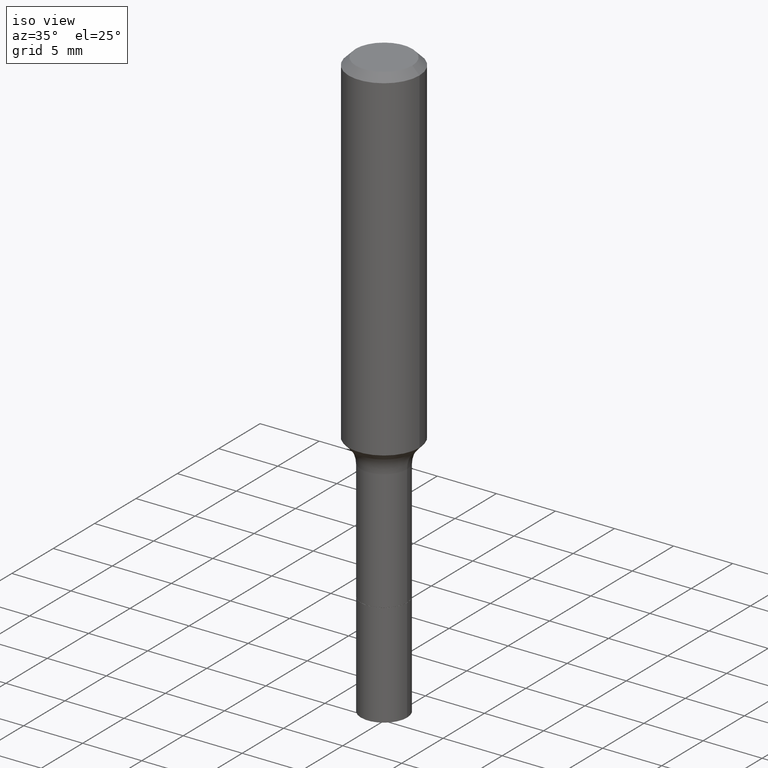
[diagram: clean part render]
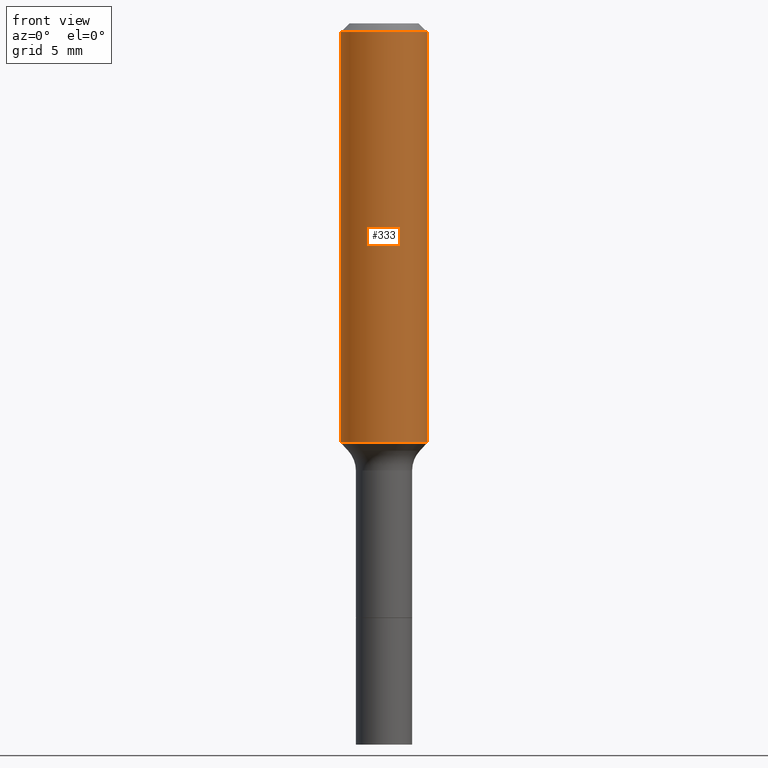
[diagram: tour spotlight — one face highlighted and labeled with its STEP entity id]
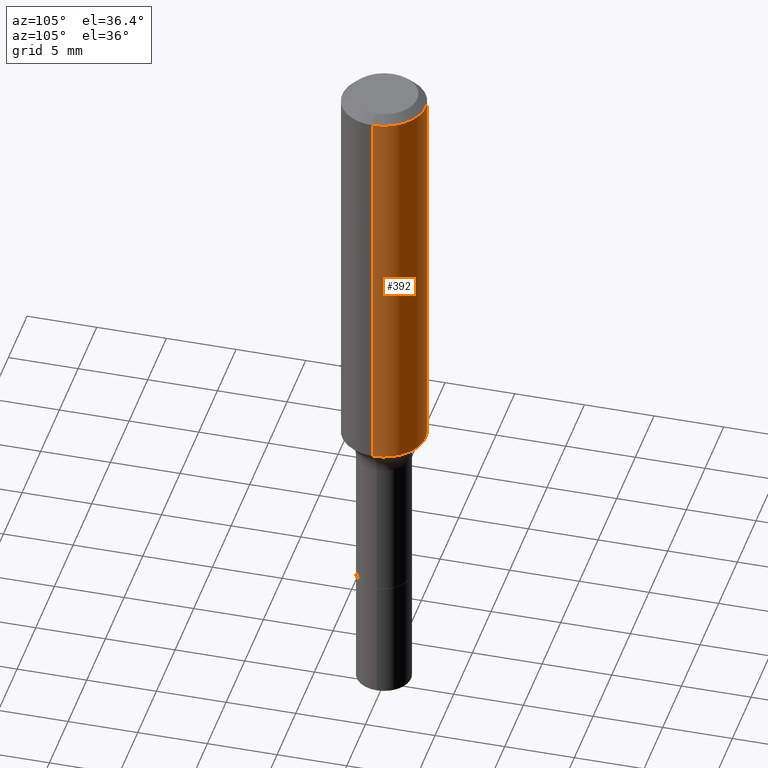
[diagram: tour spotlight — one face highlighted and labeled with its STEP entity id]
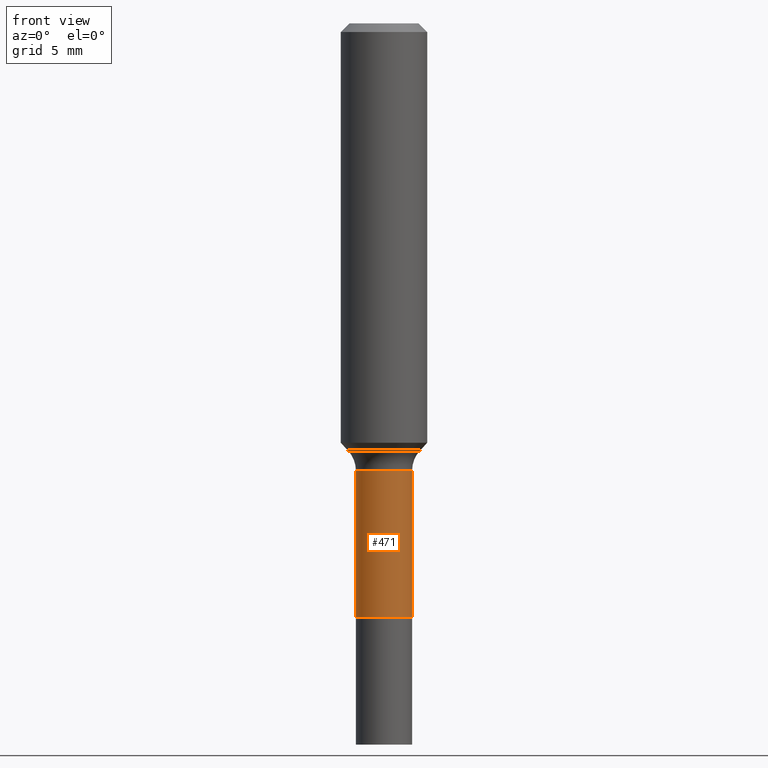
[diagram: tour spotlight — one face highlighted and labeled with its STEP entity id]
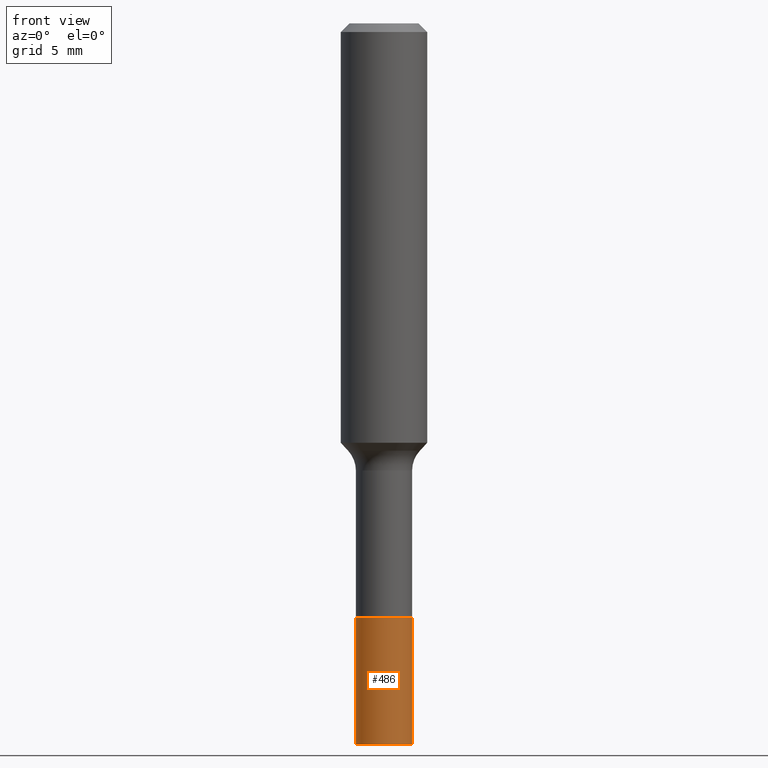
[diagram: tour spotlight — one face highlighted and labeled with its STEP entity id]
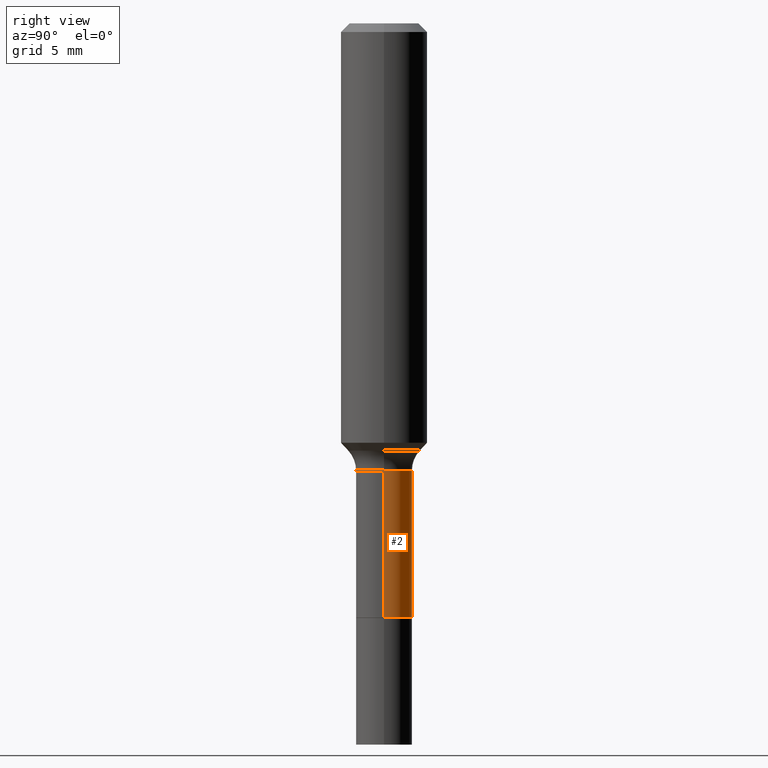
[diagram: tour spotlight — one face highlighted and labeled with its STEP entity id]
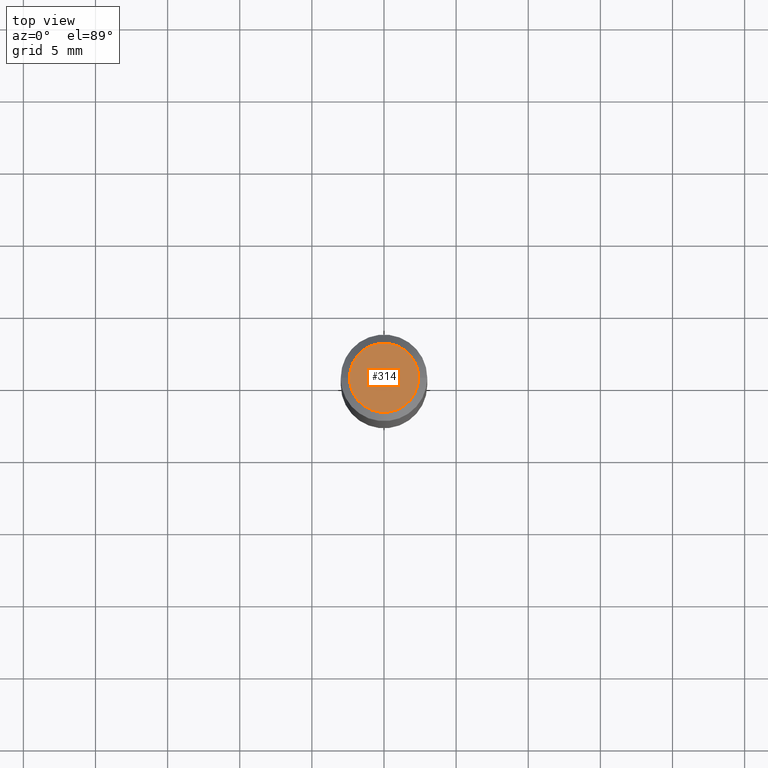
[diagram: tour spotlight — one face highlighted and labeled with its STEP entity id]
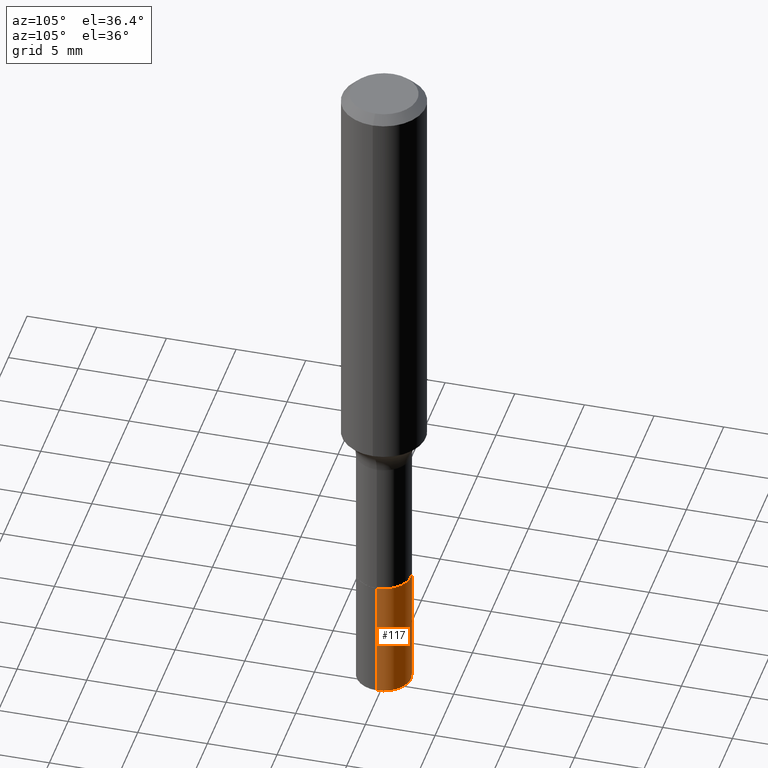
[diagram: tour spotlight — one face highlighted and labeled with its STEP entity id]
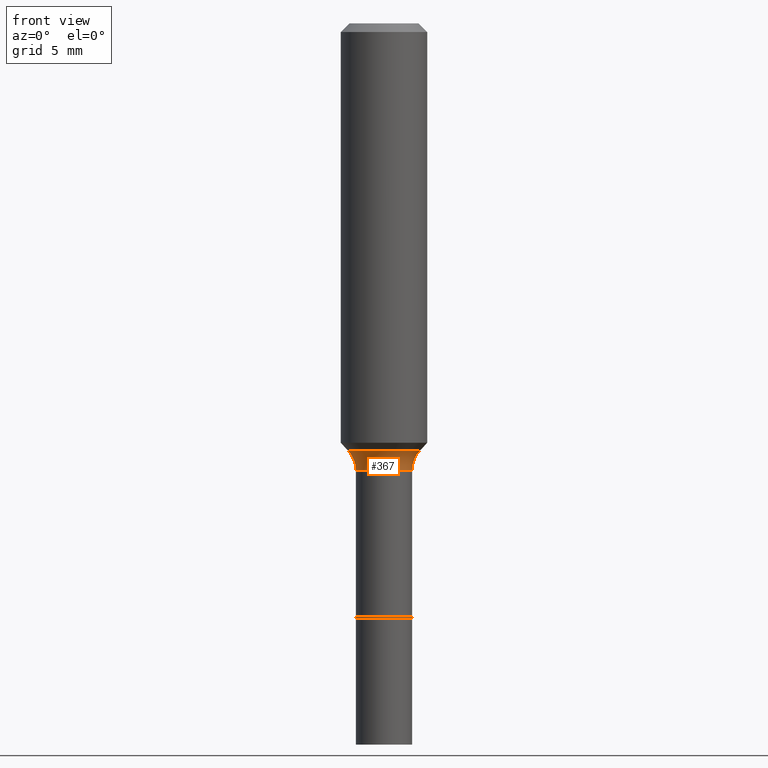
[diagram: tour spotlight — one face highlighted and labeled with its STEP entity id]
A machine part: a face-by-face anatomy tour. The part has 18 B-rep faces; the first image is the clean iso view, then the 8 largest visible faces are spotlighted one at a time (largest first), each with its STEP entity span.

Face 1 — front view, entity #333. In plain terms, the highlighted cylindrical surface (partial cylindrical patch) has radius 2.9997 mm, axis along (-0, 0, 1).
Definition (entity closure, byte-faithful):
#3 = AXIS2_PLACEMENT_3D ( 'NONE', #210, #247, #11 ) ;
#11 = DIRECTION ( 'NONE',  ( 1.000000000000000000, -6.982962677686265133E-15, 0.000000000000000000 ) ) ;
#16 = ORIENTED_EDGE ( 'NONE', *, *, #277, .T. ) ;
#28 = ORIENTED_EDGE ( 'NONE', *, *, #64, .T. ) ;
#30 = DIRECTION ( 'NONE',  ( -2.445468806185136877E-29, 3.491481338843145188E-15, 1.000000000000000000 ) ) ;
#44 = CIRCLE ( 'NONE', #403, 0.1180999999999999966 ) ;
#53 = ORIENTED_EDGE ( 'NONE', *, *, #410, .F. ) ;
#64 = EDGE_CURVE ( 'NONE', #180, #130, #302, .T. ) ;
#101 = DIRECTION ( 'NONE',  ( 1.000000000000000000, -6.982962677686266711E-15, 4.876176775795936353E-29 ) ) ;
#130 = VERTEX_POINT ( 'NONE', #435 ) ;
#145 = CARTESIAN_POINT ( 'NONE',  ( 0.000000000000000000, 0.000000000000000000, 0.000000000000000000 ) ) ;
#180 = VERTEX_POINT ( 'NONE', #488 ) ;
#184 = ORIENTED_EDGE ( 'NONE', *, *, #469, .F. ) ;
#196 = AXIS2_PLACEMENT_3D ( 'NONE', #145, #422, #101 ) ;
#210 = CARTESIAN_POINT ( 'NONE',  ( 2.799192946632236054E-29, -3.996505664790683572E-15, -1.144644715791283796 ) ) ;
#225 = CARTESIAN_POINT ( 'NONE',  ( 0.1181000000000000660, -8.246878922347485584E-16, 5.758764772215003944E-30 ) ) ;
#247 = DIRECTION ( 'NONE',  ( -2.445468806185136597E-29, 3.491481338843145583E-15, 1.000000000000000000 ) ) ;
#248 = VECTOR ( 'NONE', #30, 39.37007874015748143 ) ;
#253 = VERTEX_POINT ( 'NONE', #396 ) ;
#259 = FACE_OUTER_BOUND ( 'NONE', #460, .T. ) ;
#264 = DIRECTION ( 'NONE',  ( -2.445468806185136877E-29, 3.491481338843145188E-15, 1.000000000000000000 ) ) ;
#268 = DIRECTION ( 'NONE',  ( 1.000000000000000000, -6.982962677686266711E-15, 0.000000000000000000 ) ) ;
#277 = EDGE_CURVE ( 'NONE', #253, #180, #386, .T. ) ;
#294 = CYLINDRICAL_SURFACE ( 'NONE', #196, 0.1181000000000000660 ) ;
#302 = LINE ( 'NONE', #225, #248 ) ;
#333 = ADVANCED_FACE ( 'NONE', ( #259 ), #294, .T. ) ;
#341 = VECTOR ( 'NONE', #264, 39.37007874015748143 ) ;
#345 = CARTESIAN_POINT ( 'NONE',  ( 5.776197320209328408E-31, -8.246878922347560526E-17, -0.02362000000000014435 ) ) ;
#374 = CARTESIAN_POINT ( 'NONE',  ( -0.1181000000000000660, 8.391509709326787887E-16, -5.809262341591047287E-30 ) ) ;
#386 = CIRCLE ( 'NONE', #3, 0.1181000000000001354 ) ;
#396 = CARTESIAN_POINT ( 'NONE',  ( -0.1181000000000001354, -3.157354693858003797E-15, -1.144644715791283796 ) ) ;
#403 = AXIS2_PLACEMENT_3D ( 'NONE', #345, #511, #268 ) ;
#410 = EDGE_CURVE ( 'NONE', #253, #470, #430, .T. ) ;
#422 = DIRECTION ( 'NONE',  ( -2.445468806185136597E-29, 3.491481338843145583E-15, 1.000000000000000000 ) ) ;
#430 = LINE ( 'NONE', #374, #341 ) ;
#435 = CARTESIAN_POINT ( 'NONE',  ( 0.1180999999999999966, -9.071566814582237199E-16, -0.02362000000000014435 ) ) ;
#460 = EDGE_LOOP ( 'NONE', ( #53, #16, #28, #184 ) ) ;
#469 = EDGE_CURVE ( 'NONE', #470, #130, #44, .T. ) ;
#470 = VERTEX_POINT ( 'NONE', #472 ) ;
#472 = CARTESIAN_POINT ( 'NONE',  ( -0.1180999999999999966, -1.200336256074400134E-15, -0.02362000000000014435 ) ) ;
#488 = CARTESIAN_POINT ( 'NONE',  ( 0.1181000000000001354, -4.821193557025433412E-15, -1.144644715791283796 ) ) ;
#511 = DIRECTION ( 'NONE',  ( -2.445468806185136597E-29, 3.491481338843145583E-15, 1.000000000000000000 ) ) ;

Face 2 — auxiliary view, entity #392. In plain terms, the highlighted cylindrical surface (partial cylindrical patch) has radius 2.9997 mm, axis along (-0, 0, 1).
Definition (entity closure, byte-faithful):
#4 = EDGE_CURVE ( 'NONE', #180, #253, #83, .T. ) ;
#30 = DIRECTION ( 'NONE',  ( -2.445468806185136877E-29, 3.491481338843145188E-15, 1.000000000000000000 ) ) ;
#36 = DIRECTION ( 'NONE',  ( -2.445468806185136597E-29, 3.491481338843145583E-15, 1.000000000000000000 ) ) ;
#62 = ORIENTED_EDGE ( 'NONE', *, *, #64, .F. ) ;
#64 = EDGE_CURVE ( 'NONE', #180, #130, #302, .T. ) ;
#83 = CIRCLE ( 'NONE', #114, 0.1181000000000001354 ) ;
#110 = AXIS2_PLACEMENT_3D ( 'NONE', #388, #36, #457 ) ;
#114 = AXIS2_PLACEMENT_3D ( 'NONE', #266, #270, #193 ) ;
#130 = VERTEX_POINT ( 'NONE', #435 ) ;
#136 = DIRECTION ( 'NONE',  ( -2.445468806185136597E-29, 3.491481338843145583E-15, 1.000000000000000000 ) ) ;
#148 = DIRECTION ( 'NONE',  ( 1.000000000000000000, -6.982962677686266711E-15, 4.876176775795936353E-29 ) ) ;
#180 = VERTEX_POINT ( 'NONE', #488 ) ;
#193 = DIRECTION ( 'NONE',  ( 1.000000000000000000, -6.982962677686265133E-15, 0.000000000000000000 ) ) ;
#217 = ORIENTED_EDGE ( 'NONE', *, *, #4, .T. ) ;
#218 = CYLINDRICAL_SURFACE ( 'NONE', #417, 0.1181000000000000660 ) ;
#225 = CARTESIAN_POINT ( 'NONE',  ( 0.1181000000000000660, -8.246878922347485584E-16, 5.758764772215003944E-30 ) ) ;
#227 = ORIENTED_EDGE ( 'NONE', *, *, #410, .T. ) ;
#245 = ORIENTED_EDGE ( 'NONE', *, *, #474, .F. ) ;
#248 = VECTOR ( 'NONE', #30, 39.37007874015748143 ) ;
#253 = VERTEX_POINT ( 'NONE', #396 ) ;
#264 = DIRECTION ( 'NONE',  ( -2.445468806185136877E-29, 3.491481338843145188E-15, 1.000000000000000000 ) ) ;
#266 = CARTESIAN_POINT ( 'NONE',  ( 2.799192946632236054E-29, -3.996505664790683572E-15, -1.144644715791283796 ) ) ;
#270 = DIRECTION ( 'NONE',  ( -2.445468806185136597E-29, 3.491481338843145583E-15, 1.000000000000000000 ) ) ;
#302 = LINE ( 'NONE', #225, #248 ) ;
#328 = CIRCLE ( 'NONE', #110, 0.1180999999999999966 ) ;
#341 = VECTOR ( 'NONE', #264, 39.37007874015748143 ) ;
#374 = CARTESIAN_POINT ( 'NONE',  ( -0.1181000000000000660, 8.391509709326787887E-16, -5.809262341591047287E-30 ) ) ;
#381 = EDGE_LOOP ( 'NONE', ( #217, #227, #245, #62 ) ) ;
#388 = CARTESIAN_POINT ( 'NONE',  ( 5.776197320209328408E-31, -8.246878922347560526E-17, -0.02362000000000014435 ) ) ;
#392 = ADVANCED_FACE ( 'NONE', ( #432 ), #218, .T. ) ;
#396 = CARTESIAN_POINT ( 'NONE',  ( -0.1181000000000001354, -3.157354693858003797E-15, -1.144644715791283796 ) ) ;
#410 = EDGE_CURVE ( 'NONE', #253, #470, #430, .T. ) ;
#417 = AXIS2_PLACEMENT_3D ( 'NONE', #509, #136, #148 ) ;
#430 = LINE ( 'NONE', #374, #341 ) ;
#432 = FACE_OUTER_BOUND ( 'NONE', #381, .T. ) ;
#435 = CARTESIAN_POINT ( 'NONE',  ( 0.1180999999999999966, -9.071566814582237199E-16, -0.02362000000000014435 ) ) ;
#457 = DIRECTION ( 'NONE',  ( 1.000000000000000000, -6.982962677686266711E-15, 0.000000000000000000 ) ) ;
#470 = VERTEX_POINT ( 'NONE', #472 ) ;
#472 = CARTESIAN_POINT ( 'NONE',  ( -0.1180999999999999966, -1.200336256074400134E-15, -0.02362000000000014435 ) ) ;
#474 = EDGE_CURVE ( 'NONE', #130, #470, #328, .T. ) ;
#488 = CARTESIAN_POINT ( 'NONE',  ( 0.1181000000000001354, -4.821193557025433412E-15, -1.144644715791283796 ) ) ;
#509 = CARTESIAN_POINT ( 'NONE',  ( 0.000000000000000000, 0.000000000000000000, 0.000000000000000000 ) ) ;

Face 3 — front view, entity #471. In plain terms, the highlighted cylindrical surface (edge-blend (fillet) strip) has radius 1.9494 mm, axis along (-0, 0, 1).
Definition (entity closure, byte-faithful):
#13 = ORIENTED_EDGE ( 'NONE', *, *, #80, .T. ) ;
#15 = CIRCLE ( 'NONE', #139, 0.07674999999999995715 ) ;
#24 = DIRECTION ( 'NONE',  ( -2.445468806185136597E-29, 3.491481338843145583E-15, 1.000000000000000000 ) ) ;
#32 = DIRECTION ( 'NONE',  ( -2.445468806185136597E-29, 3.491481338843145583E-15, 1.000000000000000000 ) ) ;
#55 = CIRCLE ( 'NONE', #273, 0.07674999999999999878 ) ;
#68 = CARTESIAN_POINT ( 'NONE',  ( 2.984694677948959472E-29, -4.261352974058059028E-15, -1.220499999999999918 ) ) ;
#77 = EDGE_CURVE ( 'NONE', #250, #340, #183, .T. ) ;
#80 = EDGE_CURVE ( 'NONE', #250, #159, #55, .T. ) ;
#96 = ORIENTED_EDGE ( 'NONE', *, *, #77, .F. ) ;
#105 = VECTOR ( 'NONE', #303, 39.37007874015748143 ) ;
#139 = AXIS2_PLACEMENT_3D ( 'NONE', #68, #24, #223 ) ;
#146 = CARTESIAN_POINT ( 'NONE',  ( -0.07674999999999997102, 5.453415496958766868E-16, -3.775282681770638931E-30 ) ) ;
#152 = ORIENTED_EDGE ( 'NONE', *, *, #395, .F. ) ;
#159 = VERTEX_POINT ( 'NONE', #326 ) ;
#161 = CARTESIAN_POINT ( 'NONE',  ( 0.07674999999999995715, -4.797295359570479556E-15, -1.220499999999999918 ) ) ;
#170 = VERTEX_POINT ( 'NONE', #161 ) ;
#183 = LINE ( 'NONE', #146, #301 ) ;
#195 = ORIENTED_EDGE ( 'NONE', *, *, #389, .T. ) ;
#221 = DIRECTION ( 'NONE',  ( -2.445468806185136877E-29, 3.491481338843145188E-15, 1.000000000000000000 ) ) ;
#223 = DIRECTION ( 'NONE',  ( 1.000000000000000000, -6.982962677686263555E-15, 0.000000000000000000 ) ) ;
#228 = FACE_OUTER_BOUND ( 'NONE', #413, .T. ) ;
#250 = VERTEX_POINT ( 'NONE', #393 ) ;
#255 = CARTESIAN_POINT ( 'NONE',  ( -0.07674999999999995715, -4.416926303134944719E-15, -1.220499999999999918 ) ) ;
#272 = LINE ( 'NONE', #504, #105 ) ;
#273 = AXIS2_PLACEMENT_3D ( 'NONE', #304, #348, #354 ) ;
#290 = DIRECTION ( 'NONE',  ( 1.000000000000000000, -6.982962677686265922E-15, 4.876176775795935793E-29 ) ) ;
#301 = VECTOR ( 'NONE', #221, 39.37007874015748143 ) ;
#303 = DIRECTION ( 'NONE',  ( -2.445468806185136877E-29, 3.491481338843145188E-15, 1.000000000000000000 ) ) ;
#304 = CARTESIAN_POINT ( 'NONE',  ( 3.966550403632291282E-29, -5.663182731603581614E-15, -1.622000000000000108 ) ) ;
#326 = CARTESIAN_POINT ( 'NONE',  ( 0.07674999999999999878, -6.199125117116002142E-15, -1.622000000000000108 ) ) ;
#340 = VERTEX_POINT ( 'NONE', #255 ) ;
#348 = DIRECTION ( 'NONE',  ( -2.445468806185136597E-29, 3.491481338843145583E-15, 1.000000000000000000 ) ) ;
#354 = DIRECTION ( 'NONE',  ( 1.000000000000000000, -6.982962677686259611E-15, 0.000000000000000000 ) ) ;
#380 = AXIS2_PLACEMENT_3D ( 'NONE', #500, #32, #290 ) ;
#385 = CYLINDRICAL_SURFACE ( 'NONE', #380, 0.07674999999999997102 ) ;
#389 = EDGE_CURVE ( 'NONE', #159, #170, #272, .T. ) ;
#393 = CARTESIAN_POINT ( 'NONE',  ( -0.07675000000000001266, -4.416926303134944719E-15, -1.622000000000000108 ) ) ;
#395 = EDGE_CURVE ( 'NONE', #340, #170, #15, .T. ) ;
#413 = EDGE_LOOP ( 'NONE', ( #96, #13, #195, #152 ) ) ;
#471 = ADVANCED_FACE ( 'NONE', ( #228 ), #385, .T. ) ;
#500 = CARTESIAN_POINT ( 'NONE',  ( 0.000000000000000000, 0.000000000000000000, 0.000000000000000000 ) ) ;
#504 = CARTESIAN_POINT ( 'NONE',  ( 0.07674999999999997102, -5.359423855124207255E-16, 3.742465675423379404E-30 ) ) ;

Face 4 — front view, entity #486. In plain terms, the highlighted cylindrical surface (edge-blend (fillet) strip) has radius 1.9495 mm, axis along (-0, 0, 1).
Definition (entity closure, byte-faithful):
#7 = DIRECTION ( 'NONE',  ( -2.445468806185136597E-29, 3.491481338843145583E-15, 1.000000000000000000 ) ) ;
#21 = CYLINDRICAL_SURFACE ( 'NONE', #168, 0.07675000000000006817 ) ;
#40 = CIRCLE ( 'NONE', #163, 0.07675000000000012368 ) ;
#47 = ORIENTED_EDGE ( 'NONE', *, *, #162, .F. ) ;
#56 = VERTEX_POINT ( 'NONE', #339 ) ;
#63 = FACE_OUTER_BOUND ( 'NONE', #420, .T. ) ;
#78 = CARTESIAN_POINT ( 'NONE',  ( -0.07675000000000001266, -5.723613194196990232E-15, -1.622500000000000053 ) ) ;
#98 = EDGE_CURVE ( 'NONE', #123, #56, #274, .T. ) ;
#112 = CARTESIAN_POINT ( 'NONE',  ( 3.967773138035384083E-29, -5.664928472273003117E-15, -1.622500000000000053 ) ) ;
#123 = VERTEX_POINT ( 'NONE', #78 ) ;
#132 = DIRECTION ( 'NONE',  ( 1.000000000000000000, -6.982962677686261189E-15, 0.000000000000000000 ) ) ;
#138 = DIRECTION ( 'NONE',  ( 1.000000000000000000, -6.982962677686265922E-15, 0.000000000000000000 ) ) ;
#140 = DIRECTION ( 'NONE',  ( 1.000000000000000000, -6.982962677686271444E-15, 0.000000000000000000 ) ) ;
#151 = EDGE_CURVE ( 'NONE', #344, #164, #40, .T. ) ;
#162 = EDGE_CURVE ( 'NONE', #344, #123, #279, .T. ) ;
#163 = AXIS2_PLACEMENT_3D ( 'NONE', #214, #7, #132 ) ;
#164 = VERTEX_POINT ( 'NONE', #286 ) ;
#168 = AXIS2_PLACEMENT_3D ( 'NONE', #174, #337, #138 ) ;
#174 = CARTESIAN_POINT ( 'NONE',  ( 3.967773138035384083E-29, -5.664928472273003117E-15, -1.622500000000000053 ) ) ;
#214 = CARTESIAN_POINT ( 'NONE',  ( 4.813905344975441835E-29, -6.872981015512731707E-15, -1.968500000000000139 ) ) ;
#231 = CARTESIAN_POINT ( 'NONE',  ( 0.07675000000000006817, -6.200870857785424434E-15, -1.622500000000000053 ) ) ;
#274 = CIRCLE ( 'NONE', #399, 0.07675000000000001266 ) ;
#278 = VECTOR ( 'NONE', #480, 39.37007874015748143 ) ;
#279 = LINE ( 'NONE', #320, #278 ) ;
#280 = ORIENTED_EDGE ( 'NONE', *, *, #98, .F. ) ;
#286 = CARTESIAN_POINT ( 'NONE',  ( 0.07675000000000012368, -7.408923401025153024E-15, -1.968500000000000139 ) ) ;
#307 = DIRECTION ( 'NONE',  ( -2.445468806185136597E-29, 3.491481338843145583E-15, 1.000000000000000000 ) ) ;
#320 = CARTESIAN_POINT ( 'NONE',  ( -0.07675000000000006817, -5.119586922577125543E-15, -1.622500000000000053 ) ) ;
#337 = DIRECTION ( 'NONE',  ( -2.445468806185136597E-29, 3.491481338843145583E-15, 1.000000000000000000 ) ) ;
#339 = CARTESIAN_POINT ( 'NONE',  ( 0.07675000000000001266, -6.200870857785424434E-15, -1.622500000000000053 ) ) ;
#344 = VERTEX_POINT ( 'NONE', #427 ) ;
#352 = DIRECTION ( 'NONE',  ( -2.445468806185136877E-29, 3.491481338843145188E-15, 1.000000000000000000 ) ) ;
#399 = AXIS2_PLACEMENT_3D ( 'NONE', #112, #307, #140 ) ;
#420 = EDGE_LOOP ( 'NONE', ( #47, #495, #451, #280 ) ) ;
#427 = CARTESIAN_POINT ( 'NONE',  ( -0.07675000000000013756, -5.723613194196989444E-15, -1.968500000000000139 ) ) ;
#440 = EDGE_CURVE ( 'NONE', #164, #56, #468, .T. ) ;
#451 = ORIENTED_EDGE ( 'NONE', *, *, #440, .T. ) ;
#468 = LINE ( 'NONE', #231, #502 ) ;
#480 = DIRECTION ( 'NONE',  ( -2.445468806185136877E-29, 3.491481338843145188E-15, 1.000000000000000000 ) ) ;
#486 = ADVANCED_FACE ( 'NONE', ( #63 ), #21, .T. ) ;
#495 = ORIENTED_EDGE ( 'NONE', *, *, #151, .T. ) ;
#502 = VECTOR ( 'NONE', #352, 39.37007874015748143 ) ;

Face 5 — right view, entity #2. In plain terms, the highlighted cylindrical surface (edge-blend (fillet) strip) has radius 1.9494 mm, axis along (-0, 0, 1).
Definition (entity closure, byte-faithful):
#2 = ADVANCED_FACE ( 'NONE', ( #292 ), #459, .T. ) ;
#27 = DIRECTION ( 'NONE',  ( 1.000000000000000000, -6.982962677686263555E-15, 0.000000000000000000 ) ) ;
#61 = EDGE_CURVE ( 'NONE', #170, #340, #201, .T. ) ;
#76 = CARTESIAN_POINT ( 'NONE',  ( 2.984694677948959472E-29, -4.261352974058059028E-15, -1.220499999999999918 ) ) ;
#77 = EDGE_CURVE ( 'NONE', #250, #340, #183, .T. ) ;
#99 = CARTESIAN_POINT ( 'NONE',  ( 0.000000000000000000, 0.000000000000000000, 0.000000000000000000 ) ) ;
#105 = VECTOR ( 'NONE', #303, 39.37007874015748143 ) ;
#115 = CIRCLE ( 'NONE', #479, 0.07674999999999999878 ) ;
#146 = CARTESIAN_POINT ( 'NONE',  ( -0.07674999999999997102, 5.453415496958766868E-16, -3.775282681770638931E-30 ) ) ;
#147 = ORIENTED_EDGE ( 'NONE', *, *, #240, .T. ) ;
#159 = VERTEX_POINT ( 'NONE', #326 ) ;
#161 = CARTESIAN_POINT ( 'NONE',  ( 0.07674999999999995715, -4.797295359570479556E-15, -1.220499999999999918 ) ) ;
#167 = ORIENTED_EDGE ( 'NONE', *, *, #389, .F. ) ;
#170 = VERTEX_POINT ( 'NONE', #161 ) ;
#175 = DIRECTION ( 'NONE',  ( -2.445468806185136597E-29, 3.491481338843145583E-15, 1.000000000000000000 ) ) ;
#183 = LINE ( 'NONE', #146, #301 ) ;
#198 = DIRECTION ( 'NONE',  ( 1.000000000000000000, -6.982962677686259611E-15, 0.000000000000000000 ) ) ;
#201 = CIRCLE ( 'NONE', #496, 0.07674999999999995715 ) ;
#221 = DIRECTION ( 'NONE',  ( -2.445468806185136877E-29, 3.491481338843145188E-15, 1.000000000000000000 ) ) ;
#234 = ORIENTED_EDGE ( 'NONE', *, *, #61, .F. ) ;
#240 = EDGE_CURVE ( 'NONE', #159, #250, #115, .T. ) ;
#244 = EDGE_LOOP ( 'NONE', ( #147, #332, #234, #167 ) ) ;
#250 = VERTEX_POINT ( 'NONE', #393 ) ;
#255 = CARTESIAN_POINT ( 'NONE',  ( -0.07674999999999995715, -4.416926303134944719E-15, -1.220499999999999918 ) ) ;
#272 = LINE ( 'NONE', #504, #105 ) ;
#292 = FACE_OUTER_BOUND ( 'NONE', #244, .T. ) ;
#301 = VECTOR ( 'NONE', #221, 39.37007874015748143 ) ;
#303 = DIRECTION ( 'NONE',  ( -2.445468806185136877E-29, 3.491481338843145188E-15, 1.000000000000000000 ) ) ;
#310 = CARTESIAN_POINT ( 'NONE',  ( 3.966550403632291282E-29, -5.663182731603581614E-15, -1.622000000000000108 ) ) ;
#326 = CARTESIAN_POINT ( 'NONE',  ( 0.07674999999999999878, -6.199125117116002142E-15, -1.622000000000000108 ) ) ;
#332 = ORIENTED_EDGE ( 'NONE', *, *, #77, .T. ) ;
#340 = VERTEX_POINT ( 'NONE', #255 ) ;
#384 = DIRECTION ( 'NONE',  ( -2.445468806185136597E-29, 3.491481338843145583E-15, 1.000000000000000000 ) ) ;
#389 = EDGE_CURVE ( 'NONE', #159, #170, #272, .T. ) ;
#390 = DIRECTION ( 'NONE',  ( 1.000000000000000000, -6.982962677686265922E-15, 4.876176775795935793E-29 ) ) ;
#393 = CARTESIAN_POINT ( 'NONE',  ( -0.07675000000000001266, -4.416926303134944719E-15, -1.622000000000000108 ) ) ;
#408 = AXIS2_PLACEMENT_3D ( 'NONE', #99, #175, #390 ) ;
#459 = CYLINDRICAL_SURFACE ( 'NONE', #408, 0.07674999999999997102 ) ;
#477 = DIRECTION ( 'NONE',  ( -2.445468806185136597E-29, 3.491481338843145583E-15, 1.000000000000000000 ) ) ;
#479 = AXIS2_PLACEMENT_3D ( 'NONE', #310, #477, #198 ) ;
#496 = AXIS2_PLACEMENT_3D ( 'NONE', #76, #384, #27 ) ;
#504 = CARTESIAN_POINT ( 'NONE',  ( 0.07674999999999997102, -5.359423855124207255E-16, 3.742465675423379404E-30 ) ) ;

Face 6 — top view, entity #314. In plain terms, the highlighted planar face has unit normal (0, -0, -1).
Definition (entity closure, byte-faithful):
#29 = DIRECTION ( 'NONE',  ( 1.000000000000000000, -6.982962677686267499E-15, 4.875432709231658792E-29 ) ) ;
#39 = EDGE_LOOP ( 'NONE', ( #416, #349 ) ) ;
#72 = DIRECTION ( 'NONE',  ( -2.445468806185136597E-29, 3.491481338843145583E-15, 1.000000000000000000 ) ) ;
#97 = CARTESIAN_POINT ( 'NONE',  ( 0.09447999999999998066, -7.704367267948738690E-16, -3.085620075131172158E-17 ) ) ;
#106 = CARTESIAN_POINT ( 'NONE',  ( 7.545787641473140628E-46, -1.077338491108201769E-31, -3.085620075131671975E-17 ) ) ;
#133 = CIRCLE ( 'NONE', #441, 0.09447999999999998066 ) ;
#157 = CARTESIAN_POINT ( 'NONE',  ( 7.545787641473140628E-46, -1.077338491108201769E-31, -3.085620075131671975E-17 ) ) ;
#165 = CARTESIAN_POINT ( 'NONE',  ( 3.772893820736570314E-46, -5.386692455541008845E-32, -1.542810037565835988E-17 ) ) ;
#177 = CARTESIAN_POINT ( 'NONE',  ( -0.09447999999999998066, 7.009847083995354710E-16, -3.085620075132147757E-17 ) ) ;
#192 = CIRCLE ( 'NONE', #267, 0.09447999999999998066 ) ;
#229 = EDGE_CURVE ( 'NONE', #482, #405, #133, .T. ) ;
#241 = AXIS2_PLACEMENT_3D ( 'NONE', #165, #364, #400 ) ;
#267 = AXIS2_PLACEMENT_3D ( 'NONE', #106, #72, #29 ) ;
#275 = DIRECTION ( 'NONE',  ( 1.000000000000000000, -6.982962677686267499E-15, 4.875432709231658792E-29 ) ) ;
#314 = ADVANCED_FACE ( 'NONE', ( #411 ), #449, .F. ) ;
#349 = ORIENTED_EDGE ( 'NONE', *, *, #229, .T. ) ;
#364 = DIRECTION ( 'NONE',  ( 2.438088387897960049E-29, -3.491481338843145188E-15, -1.000000000000000000 ) ) ;
#400 = DIRECTION ( 'NONE',  ( -1.000000000000000000, 6.982962677686265922E-15, -4.876176775795935793E-29 ) ) ;
#405 = VERTEX_POINT ( 'NONE', #177 ) ;
#411 = FACE_OUTER_BOUND ( 'NONE', #39, .T. ) ;
#416 = ORIENTED_EDGE ( 'NONE', *, *, #465, .T. ) ;
#441 = AXIS2_PLACEMENT_3D ( 'NONE', #157, #478, #275 ) ;
#449 = PLANE ( 'NONE',  #241 ) ;
#465 = EDGE_CURVE ( 'NONE', #405, #482, #192, .T. ) ;
#478 = DIRECTION ( 'NONE',  ( -2.445468806185136597E-29, 3.491481338843145583E-15, 1.000000000000000000 ) ) ;
#482 = VERTEX_POINT ( 'NONE', #97 ) ;

Face 7 — auxiliary view, entity #117. In plain terms, the highlighted cylindrical surface (edge-blend (fillet) strip) has radius 1.9495 mm, axis along (-0, 0, 1).
Definition (entity closure, byte-faithful):
#10 = ORIENTED_EDGE ( 'NONE', *, *, #331, .F. ) ;
#19 = EDGE_CURVE ( 'NONE', #164, #344, #346, .T. ) ;
#38 = DIRECTION ( 'NONE',  ( -2.445468806185136597E-29, 3.491481338843145583E-15, 1.000000000000000000 ) ) ;
#56 = VERTEX_POINT ( 'NONE', #339 ) ;
#73 = DIRECTION ( 'NONE',  ( 1.000000000000000000, -6.982962677686261189E-15, 0.000000000000000000 ) ) ;
#78 = CARTESIAN_POINT ( 'NONE',  ( -0.07675000000000001266, -5.723613194196990232E-15, -1.622500000000000053 ) ) ;
#111 = DIRECTION ( 'NONE',  ( 1.000000000000000000, -6.982962677686271444E-15, 0.000000000000000000 ) ) ;
#117 = ADVANCED_FACE ( 'NONE', ( #232 ), #298, .T. ) ;
#123 = VERTEX_POINT ( 'NONE', #78 ) ;
#124 = ORIENTED_EDGE ( 'NONE', *, *, #162, .T. ) ;
#144 = AXIS2_PLACEMENT_3D ( 'NONE', #387, #38, #73 ) ;
#154 = ORIENTED_EDGE ( 'NONE', *, *, #19, .T. ) ;
#162 = EDGE_CURVE ( 'NONE', #344, #123, #279, .T. ) ;
#164 = VERTEX_POINT ( 'NONE', #286 ) ;
#173 = EDGE_LOOP ( 'NONE', ( #154, #124, #10, #377 ) ) ;
#179 = DIRECTION ( 'NONE',  ( -2.445468806185136597E-29, 3.491481338843145583E-15, 1.000000000000000000 ) ) ;
#231 = CARTESIAN_POINT ( 'NONE',  ( 0.07675000000000006817, -6.200870857785424434E-15, -1.622500000000000053 ) ) ;
#232 = FACE_OUTER_BOUND ( 'NONE', #173, .T. ) ;
#278 = VECTOR ( 'NONE', #480, 39.37007874015748143 ) ;
#279 = LINE ( 'NONE', #320, #278 ) ;
#286 = CARTESIAN_POINT ( 'NONE',  ( 0.07675000000000012368, -7.408923401025153024E-15, -1.968500000000000139 ) ) ;
#298 = CYLINDRICAL_SURFACE ( 'NONE', #453, 0.07675000000000006817 ) ;
#320 = CARTESIAN_POINT ( 'NONE',  ( -0.07675000000000006817, -5.119586922577125543E-15, -1.622500000000000053 ) ) ;
#322 = CARTESIAN_POINT ( 'NONE',  ( 3.967773138035384083E-29, -5.664928472273003117E-15, -1.622500000000000053 ) ) ;
#331 = EDGE_CURVE ( 'NONE', #56, #123, #373, .T. ) ;
#339 = CARTESIAN_POINT ( 'NONE',  ( 0.07675000000000001266, -6.200870857785424434E-15, -1.622500000000000053 ) ) ;
#343 = DIRECTION ( 'NONE',  ( 1.000000000000000000, -6.982962677686265922E-15, 0.000000000000000000 ) ) ;
#344 = VERTEX_POINT ( 'NONE', #427 ) ;
#346 = CIRCLE ( 'NONE', #144, 0.07675000000000012368 ) ;
#352 = DIRECTION ( 'NONE',  ( -2.445468806185136877E-29, 3.491481338843145188E-15, 1.000000000000000000 ) ) ;
#355 = AXIS2_PLACEMENT_3D ( 'NONE', #322, #485, #111 ) ;
#373 = CIRCLE ( 'NONE', #355, 0.07675000000000001266 ) ;
#377 = ORIENTED_EDGE ( 'NONE', *, *, #440, .F. ) ;
#387 = CARTESIAN_POINT ( 'NONE',  ( 4.813905344975441835E-29, -6.872981015512731707E-15, -1.968500000000000139 ) ) ;
#427 = CARTESIAN_POINT ( 'NONE',  ( -0.07675000000000013756, -5.723613194196989444E-15, -1.968500000000000139 ) ) ;
#440 = EDGE_CURVE ( 'NONE', #164, #56, #468, .T. ) ;
#453 = AXIS2_PLACEMENT_3D ( 'NONE', #462, #179, #343 ) ;
#462 = CARTESIAN_POINT ( 'NONE',  ( 3.967773138035384083E-29, -5.664928472273003117E-15, -1.622500000000000053 ) ) ;
#468 = LINE ( 'NONE', #231, #502 ) ;
#480 = DIRECTION ( 'NONE',  ( -2.445468806185136877E-29, 3.491481338843145188E-15, 1.000000000000000000 ) ) ;
#485 = DIRECTION ( 'NONE',  ( -2.445468806185136597E-29, 3.491481338843145583E-15, 1.000000000000000000 ) ) ;
#502 = VECTOR ( 'NONE', #352, 39.37007874015748143 ) ;

Face 8 — front view, entity #367. In plain terms, the highlighted toroidal blend (fillet) surface has major radius 3.9814 mm and minor (blend) radius 2.032 mm.
Definition (entity closure, byte-faithful):
#15 = CIRCLE ( 'NONE', #139, 0.07674999999999995715 ) ;
#22 = DIRECTION ( 'NONE',  ( -2.445468806185136597E-29, 3.491481338843145583E-15, 1.000000000000000000 ) ) ;
#24 = DIRECTION ( 'NONE',  ( -2.445468806185136597E-29, 3.491481338843145583E-15, 1.000000000000000000 ) ) ;
#34 = DIRECTION ( 'NONE',  ( -6.982962677686266711E-15, -1.000000000000000000, 3.491481338843145583E-15 ) ) ;
#45 = EDGE_CURVE ( 'NONE', #86, #208, #230, .T. ) ;
#46 = EDGE_CURVE ( 'NONE', #208, #170, #394, .T. ) ;
#68 = CARTESIAN_POINT ( 'NONE',  ( 2.984694677948959472E-29, -4.261352974058059028E-15, -1.220499999999999918 ) ) ;
#74 = CIRCLE ( 'NONE', #516, 0.08000000000000000167 ) ;
#81 = AXIS2_PLACEMENT_3D ( 'NONE', #419, #34, #510 ) ;
#85 = CARTESIAN_POINT ( 'NONE',  ( 0.09824170387046644859, -4.756876361795445018E-15, -1.165940131194999951 ) ) ;
#86 = VERTEX_POINT ( 'NONE', #376 ) ;
#95 = DIRECTION ( 'NONE',  ( -1.000000000000000000, 7.105427357601005014E-15, 0.000000000000000000 ) ) ;
#108 = CARTESIAN_POINT ( 'NONE',  ( 2.851270220716778580E-29, -4.070858210275671756E-15, -1.165940131194999951 ) ) ;
#129 = EDGE_CURVE ( 'NONE', #86, #340, #74, .T. ) ;
#139 = AXIS2_PLACEMENT_3D ( 'NONE', #68, #24, #223 ) ;
#150 = ORIENTED_EDGE ( 'NONE', *, *, #45, .F. ) ;
#161 = CARTESIAN_POINT ( 'NONE',  ( 0.07674999999999995715, -4.797295359570479556E-15, -1.220499999999999918 ) ) ;
#170 = VERTEX_POINT ( 'NONE', #161 ) ;
#171 = ORIENTED_EDGE ( 'NONE', *, *, #395, .T. ) ;
#208 = VERTEX_POINT ( 'NONE', #85 ) ;
#213 = EDGE_LOOP ( 'NONE', ( #150, #456, #171, #372 ) ) ;
#223 = DIRECTION ( 'NONE',  ( 1.000000000000000000, -6.982962677686263555E-15, 0.000000000000000000 ) ) ;
#226 = FACE_OUTER_BOUND ( 'NONE', #213, .T. ) ;
#230 = CIRCLE ( 'NONE', #287, 0.09824170387046647634 ) ;
#255 = CARTESIAN_POINT ( 'NONE',  ( -0.07674999999999995715, -4.416926303134944719E-15, -1.220499999999999918 ) ) ;
#257 = DIRECTION ( 'NONE',  ( 1.000000000000000000, -6.982962677686270655E-15, 0.000000000000000000 ) ) ;
#261 = TOROIDAL_SURFACE ( 'NONE', #321, 0.1567499999999999727, 0.08000000000000000167 ) ;
#287 = AXIS2_PLACEMENT_3D ( 'NONE', #108, #22, #257 ) ;
#321 = AXIS2_PLACEMENT_3D ( 'NONE', #350, #461, #418 ) ;
#340 = VERTEX_POINT ( 'NONE', #255 ) ;
#350 = CARTESIAN_POINT ( 'NONE',  ( 2.984694677948959472E-29, -4.261352974058059028E-15, -1.220499999999999918 ) ) ;
#367 = ADVANCED_FACE ( 'NONE', ( #226 ), #261, .F. ) ;
#372 = ORIENTED_EDGE ( 'NONE', *, *, #46, .F. ) ;
#376 = CARTESIAN_POINT ( 'NONE',  ( -0.09824170387046644859, -3.372808919937123320E-15, -1.165940131194999951 ) ) ;
#391 = CARTESIAN_POINT ( 'NONE',  ( -0.1567499999999999727, -3.147577235754102378E-15, -1.220499999999999918 ) ) ;
#394 = CIRCLE ( 'NONE', #81, 0.08000000000000000167 ) ;
#395 = EDGE_CURVE ( 'NONE', #340, #170, #15, .T. ) ;
#418 = DIRECTION ( 'NONE',  ( 1.000000000000000000, -6.982962677686265133E-15, 4.883557194083112340E-29 ) ) ;
#419 = CARTESIAN_POINT ( 'NONE',  ( 0.1567499999999999727, -5.355932373785381208E-15, -1.220499999999999918 ) ) ;
#456 = ORIENTED_EDGE ( 'NONE', *, *, #129, .T. ) ;
#461 = DIRECTION ( 'NONE',  ( -2.445468806185136597E-29, 3.491481338843145583E-15, 1.000000000000000000 ) ) ;
#510 = DIRECTION ( 'NONE',  ( 1.000000000000000000, -6.982962677686259611E-15, 0.000000000000000000 ) ) ;
#516 = AXIS2_PLACEMENT_3D ( 'NONE', #391, #517, #95 ) ;
#517 = DIRECTION ( 'NONE',  ( 7.105427357601001859E-15, 1.000000000000000000, -3.491481338843145583E-15 ) ) ;